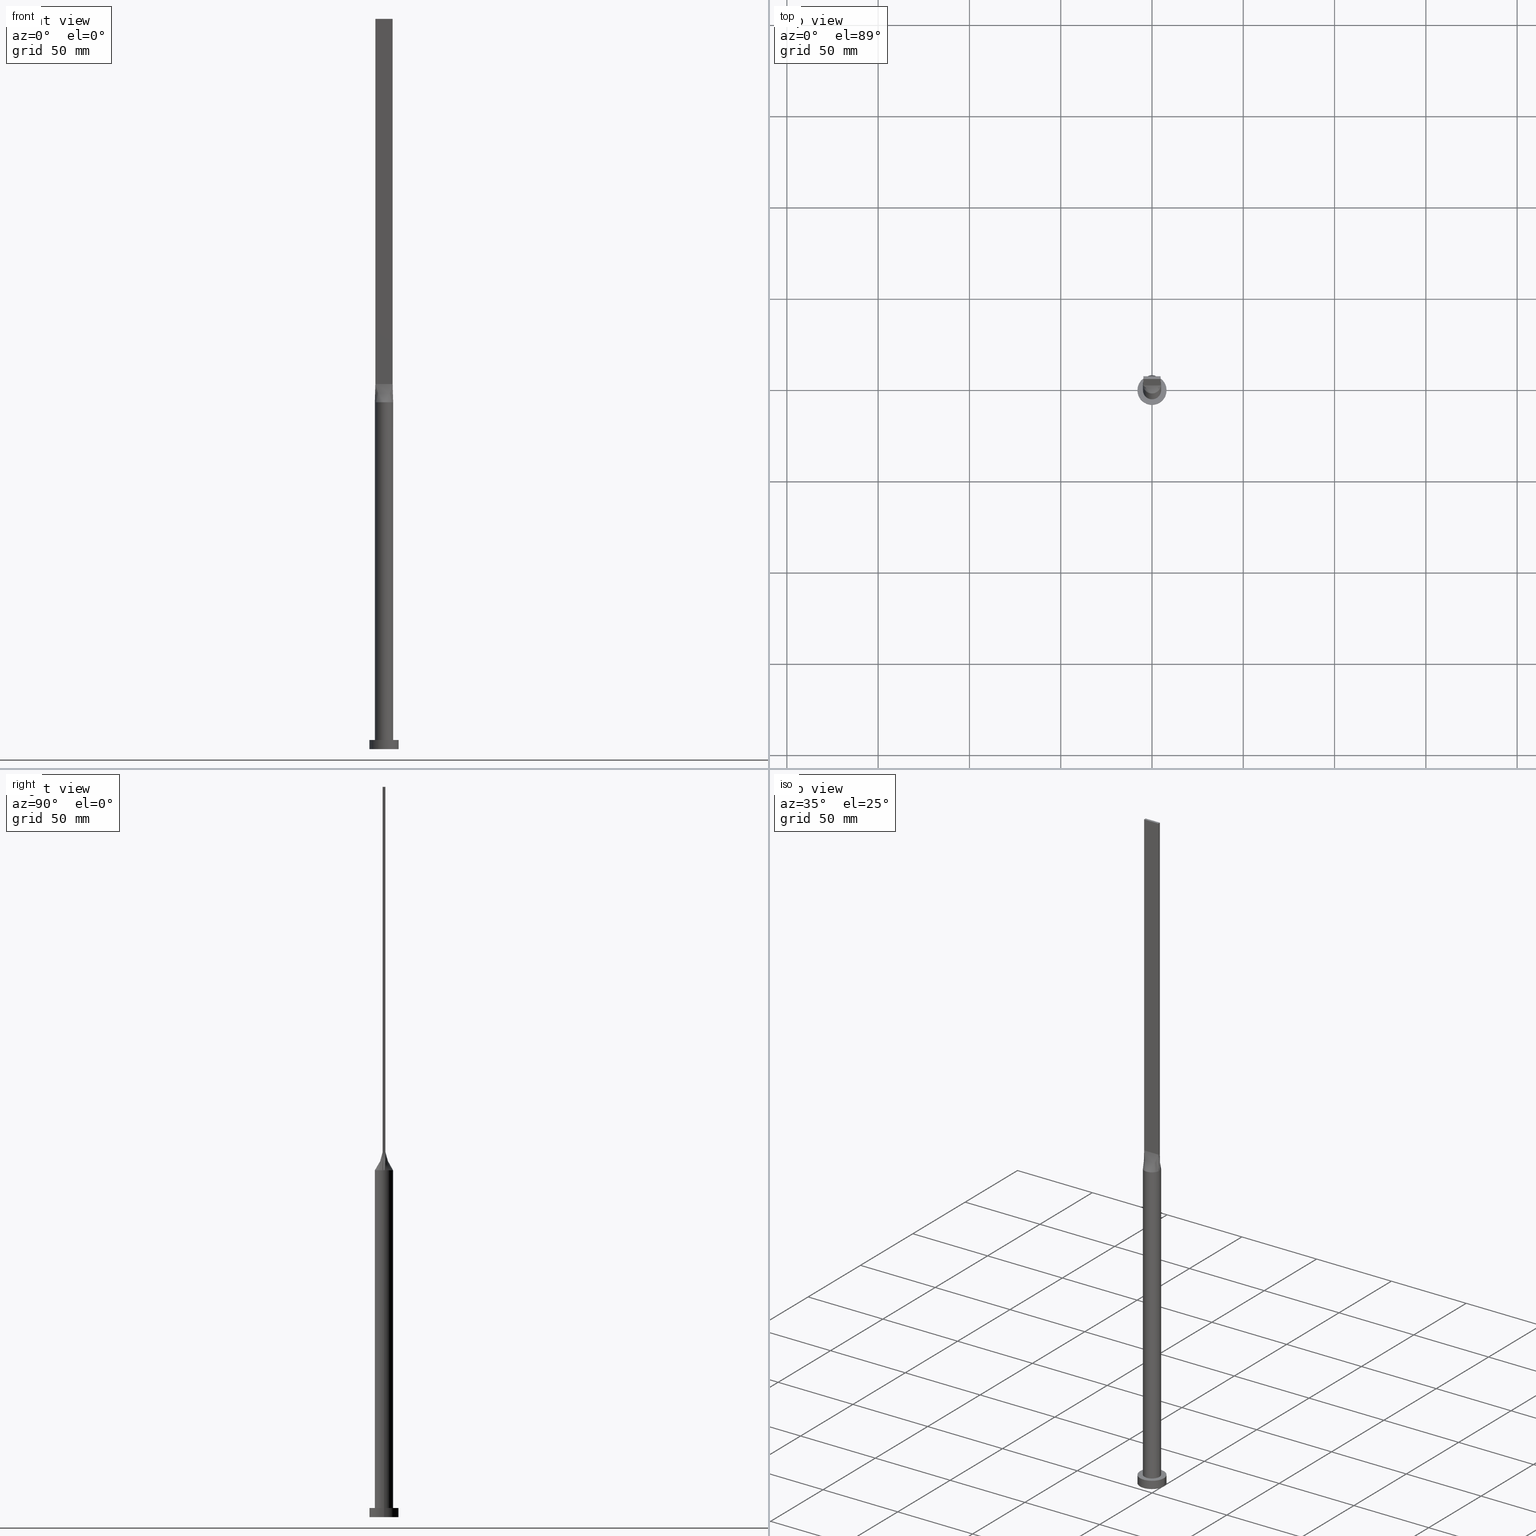
[diagram: canonical four-view strip — front | top / right | iso, engineering-drawing reading convention]
A machine part, canonical four-view strip (front | top / right | iso — engineering-drawing reading convention). The complete STEP part file that produces these views, byte-faithful:
ISO-10303-21;
HEADER;
FILE_DESCRIPTION (( 'STEP AP203' ),
    '1' );
FILE_NAME ('fd3a.STEP',
    '2023-02-13T09:51:57',
    ( '' ),
    ( '' ),
    'SwSTEP 2.0',
    'SolidWorks 2019',
    '' );
FILE_SCHEMA (( 'CONFIG_CONTROL_DESIGN' ));
ENDSEC;

DATA;
#1 = VERTEX_POINT ( 'NONE', #230 ) ;
#2 = CARTESIAN_POINT ( 'NONE',  ( 4.750000000000000000, -0.2499999999999990286, 200.0000000000000000 ) ) ;
#3 = CARTESIAN_POINT ( 'NONE',  ( 2.643217737595826566, 4.256483892511437439, 189.9999999999999432 ) ) ;
#4 = DIRECTION ( 'NONE',  ( 6.847592668329501559E-17, 1.000000000000000000, -0.000000000000000000 ) ) ;
#5 = CARTESIAN_POINT ( 'NONE',  ( -4.999625637456156291, -0.2615280553041481326, 190.0000000000000000 ) ) ;
#6 = EDGE_LOOP ( 'NONE', ( #567, #279, #445, #197 ) ) ;
#7 = CARTESIAN_POINT ( 'NONE',  ( -2.643217737595827455, 4.256483892511438327, 189.9999999999999716 ) ) ;
#8 = AXIS2_PLACEMENT_3D ( 'NONE', #466, #27, #219 ) ;
#9 = LINE ( 'NONE', #55, #461 ) ;
#10 = DIRECTION ( 'NONE',  ( 0.000000000000000000, 1.000000000000000000, 0.000000000000000000 ) ) ;
#11 = ORIENTED_EDGE ( 'NONE', *, *, #462, .F. ) ;
#12 = CARTESIAN_POINT ( 'NONE',  ( 4.750000000000000000, 0.7500000000000002220, 400.0000000000000000 ) ) ;
#13 = FACE_OUTER_BOUND ( 'NONE', #325, .T. ) ;
#14 = CARTESIAN_POINT ( 'NONE',  ( 2.770833333333326376, 0.7500000000000002220, 200.0000000000000000 ) ) ;
#15 = CARTESIAN_POINT ( 'NONE',  ( -4.750000000000000000, 0.7500000000000002220, 400.0000000000000000 ) ) ;
#16 = FACE_OUTER_BOUND ( 'NONE', #387, .T. ) ;
#17 = CARTESIAN_POINT ( 'NONE',  ( 0.7916666666666568597, 0.7500000000000002220, 200.0000000000000000 ) ) ;
#18 = CARTESIAN_POINT ( 'NONE',  ( -1.732223102076450250, -4.702695359254402518, 190.0000000000000284 ) ) ;
#19 = DIRECTION ( 'NONE',  ( 1.000000000000000000, 0.000000000000000000, 0.000000000000000000 ) ) ;
#20 = CALENDAR_DATE ( 2023, 13, 2 ) ;
#21 = CARTESIAN_POINT ( 'NONE',  ( -3.404830936252120299, 3.673931880027067720, 190.0000000000000853 ) ) ;
#22 = CARTESIAN_POINT ( 'NONE',  ( 4.938814826645345768, -0.7798128673650571718, 190.0000000000000000 ) ) ;
#23 = CARTESIAN_POINT ( 'NONE',  ( -3.958333333333336146, 0.7500000000000002220, 200.0000000000000000 ) ) ;
#24 = CARTESIAN_POINT ( 'NONE',  ( -0.7119876437238014111, -4.961551549233179870, 189.9999999999999432 ) ) ;
#25 = CARTESIAN_POINT ( 'NONE',  ( -4.750000000000000000, 0.7500000000000002220, 200.0000000000000000 ) ) ;
#26 = APPROVAL ( #144, 'NEUR�EN�' ) ;
#27 = DIRECTION ( 'NONE',  ( 0.000000000000000000, 0.000000000000000000, 1.000000000000000000 ) ) ;
#28 = CARTESIAN_POINT ( 'NONE',  ( 4.874625637456157179, 1.186344398896585606, 190.0000000000000853 ) ) ;
#29 = ORIENTED_EDGE ( 'NONE', *, *, #454, .F. ) ;
#30 = ORIENTED_EDGE ( 'NONE', *, *, #269, .T. ) ;
#31 = EDGE_CURVE ( 'NONE', #341, #492, #236, .T. ) ;
#32 = CARTESIAN_POINT ( 'NONE',  ( 4.750000000000000000, -0.7499999999999997780, 200.0000000000000000 ) ) ;
#33 = DATE_AND_TIME ( #329, #120 ) ;
#34 = MANIFOLD_SOLID_BREP ( 'P�idat vysunut�m5', #503 ) ;
#35 = VERTEX_POINT ( 'NONE', #189 ) ;
#36 = EDGE_LOOP ( 'NONE', ( #47, #233 ) ) ;
#37 = AXIS2_PLACEMENT_3D ( 'NONE', #455, #406, #254 ) ;
#38 = CARTESIAN_POINT ( 'NONE',  ( 8.000000000000000000, 9.797174393178825657E-16, 0.000000000000000000 ) ) ;
#39 = ADVANCED_FACE ( 'NONE', ( #517 ), #608, .F. ) ;
#40 = VERTEX_POINT ( 'NONE', #429 ) ;
#41 = EDGE_LOOP ( 'NONE', ( #181, #474, #184, #77 ) ) ;
#42 = DIRECTION ( 'NONE',  ( 0.000000000000000000, 0.000000000000000000, 1.000000000000000000 ) ) ;
#43 = SECURITY_CLASSIFICATION ( '', '', #114 ) ;
#44 = CARTESIAN_POINT ( 'NONE',  ( -4.999812818728077701, -1.193032336741890821E-15, 190.0000000000000000 ) ) ;
#45 = APPROVAL ( #267, 'NEUR�EN�' ) ;
#46 = B_SPLINE_SURFACE_WITH_KNOTS ( 'NONE', 3, 1, ( 
 ( #203, #544 ),
 ( #199, #498 ),
 ( #296, #489 ),
 ( #540, #248 ),
 ( #354, #91 ),
 ( #373, #221 ),
 ( #111, #59 ),
 ( #107, #62 ),
 ( #260, #256 ),
 ( #18, #457 ),
 ( #366, #67 ),
 ( #24, #317 ),
 ( #460, #171 ),
 ( #207, #509 ),
 ( #368, #263 ),
 ( #268, #553 ),
 ( #215, #309 ),
 ( #410, #157 ),
 ( #594, #562 ),
 ( #600, #211 ),
 ( #105, #598 ),
 ( #162, #314 ),
 ( #364, #505 ),
 ( #555, #506 ),
 ( #464, #548 ),
 ( #22, #265 ) ),
 .UNSPECIFIED., .F., .F., .F.,
 ( 4, 2, 2, 2, 2, 2, 2, 2, 2, 2, 2, 2, 4 ),
 ( 2, 2 ),
 ( 0.000000000000000000, 0.1250000000000000278, 0.2500000000000001110, 0.3125000000000001665, 0.3750000000000002220, 0.4375000000000002220, 0.5000000000000002220, 0.5625000000000002220, 0.6250000000000002220, 0.6875000000000002220, 0.7500000000000003331, 0.8750000000000002220, 1.000000000000000000 ),
 ( 0.000000000000000000, 1.000000000000000000 ),
 .UNSPECIFIED. ) ;
#47 = ORIENTED_EDGE ( 'NONE', *, *, #227, .F. ) ;
#48 = DIRECTION ( 'NONE',  ( -0.000000000000000000, -0.000000000000000000, -1.000000000000000000 ) ) ;
#49 = CYLINDRICAL_SURFACE ( 'NONE', #82, 8.000000000000000000 ) ;
#50 = DIRECTION ( 'NONE',  ( 0.000000000000000000, 0.000000000000000000, 1.000000000000000000 ) ) ;
#51 = EDGE_LOOP ( 'NONE', ( #390, #483, #29, #561, #427, #273 ) ) ;
#52 = CARTESIAN_POINT ( 'NONE',  ( -1.400150253878312823, 4.812847332616943419, 189.9999999999999716 ) ) ;
#53 = DIRECTION ( 'NONE',  ( -1.000000000000000000, 0.000000000000000000, 0.000000000000000000 ) ) ;
#54 = MECHANICAL_CONTEXT ( 'NONE', #129, 'mechanical' ) ;
#55 = CARTESIAN_POINT ( 'NONE',  ( 4.844407413322673328, 0.7649064336825270871, 195.0000000000000000 ) ) ;
#56 = CARTESIAN_POINT ( 'NONE',  ( -1.583333333333340587, 0.7500000000000002220, 200.0000000000000000 ) ) ;
#57 = CARTESIAN_POINT ( 'NONE',  ( 4.332026455536839293, 2.547220758687718689, 190.0000000000001137 ) ) ;
#58 = CARTESIAN_POINT ( 'NONE',  ( -4.354166666666667851, 0.7500000000000002220, 200.0000000000000000 ) ) ;
#59 = CARTESIAN_POINT ( 'NONE',  ( -1.979166666666660745, -0.7499999999999995559, 200.0000000000000568 ) ) ;
#60 = CARTESIAN_POINT ( 'NONE',  ( 4.750000000000000000, -0.7499999999999997780, 400.0000000000000000 ) ) ;
#61 = CARTESIAN_POINT ( 'NONE',  ( -1.385416666666674068, 0.7500000000000002220, 200.0000000000000000 ) ) ;
#62 = CARTESIAN_POINT ( 'NONE',  ( -1.583333333333326376, -0.7499999999999995559, 200.0000000000000568 ) ) ;
#63 = CIRCLE ( 'NONE', #377, 5.000000000000000000 ) ;
#64 = DATE_TIME_ROLE ( 'creation_date' ) ;
#65 = ADVANCED_FACE ( 'NONE', ( #88 ), #307, .T. ) ;
#66 = B_SPLINE_CURVE_WITH_KNOTS ( 'NONE', 3,
 ( #597, #28, #604, #57, #176, #335, #611, #3, #353, #244, #196, #526, #130, #535, #619, #52, #404, #83, #7, #493, #246, #198, #147, #392, #388, #484 ),
 .UNSPECIFIED., .F., .F.,
 ( 4, 2, 2, 2, 2, 2, 2, 2, 2, 2, 2, 2, 4 ),
 ( 0.000000000000000000, 0.1250000000000001388, 0.2500000000000002220, 0.3125000000000002776, 0.3750000000000002776, 0.4375000000000002776, 0.5000000000000002220, 0.5625000000000002220, 0.6250000000000001110, 0.6875000000000001110, 0.7500000000000001110, 0.8750000000000001110, 1.000000000000000000 ),
 .UNSPECIFIED. ) ;
#67 = CARTESIAN_POINT ( 'NONE',  ( -0.7916666666666584140, -0.7499999999999995559, 200.0000000000000000 ) ) ;
#68 = PERSON_AND_ORGANIZATION ( #481, #222 ) ;
#69 = AXIS2_PLACEMENT_3D ( 'NONE', #72, #334, #422 ) ;
#70 = AXIS2_PLACEMENT_3D ( 'NONE', #453, #4, #394 ) ;
#71 = EDGE_LOOP ( 'NONE', ( #478, #73, #331, #183 ) ) ;
#72 = CARTESIAN_POINT ( 'NONE',  ( 0.000000000000000000, 0.000000000000000000, 190.0000000000000000 ) ) ;
#73 = ORIENTED_EDGE ( 'NONE', *, *, #116, .T. ) ;
#74 = CARTESIAN_POINT ( 'NONE',  ( 4.750000000000000000, 0.7500000000000002220, 400.0000000000000000 ) ) ;
#75 = CIRCLE ( 'NONE', #177, 5.000000000000000000 ) ;
#76 = EDGE_CURVE ( 'NONE', #146, #179, #193, .T. ) ;
#77 = ORIENTED_EDGE ( 'NONE', *, *, #539, .T. ) ;
#78 = DESIGN_CONTEXT ( 'detailed design', #409, 'design' ) ;
#79 = CARTESIAN_POINT ( 'NONE',  ( -4.750000000000000000, -0.7499999999999991118, 400.0000000000000000 ) ) ;
#80 = APPROVAL ( #602, 'NEUR�EN�' ) ;
#81 = CARTESIAN_POINT ( 'NONE',  ( 4.938814826645345768, 0.7798128673650538412, 190.0000000000000000 ) ) ;
#82 = AXIS2_PLACEMENT_3D ( 'NONE', #591, #87, #53 ) ;
#83 = CARTESIAN_POINT ( 'NONE',  ( -2.353781608410062010, 4.424438117685770777, 189.9999999999999716 ) ) ;
#84 = CARTESIAN_POINT ( 'NONE',  ( 0.000000000000000000, 0.000000000000000000, 5.000000000000000000 ) ) ;
#85 = EDGE_LOOP ( 'NONE', ( #140, #186, #346, #330, #374 ) ) ;
#86 = CARTESIAN_POINT ( 'NONE',  ( -8.000000000000000000, 0.000000000000000000, 0.000000000000000000 ) ) ;
#87 = DIRECTION ( 'NONE',  ( -0.000000000000000000, -0.000000000000000000, -1.000000000000000000 ) ) ;
#88 = FACE_OUTER_BOUND ( 'NONE', #85, .T. ) ;
#89 = CARTESIAN_POINT ( 'NONE',  ( 4.750000000000000000, 0.2500000000000009992, 200.0000000000000000 ) ) ;
#90 = CARTESIAN_POINT ( 'NONE',  ( 4.750000000000000000, 0.7500000000000002220, 400.0000000000000000 ) ) ;
#91 = CARTESIAN_POINT ( 'NONE',  ( -2.770833333333329040, -0.7499999999999994449, 200.0000000000000568 ) ) ;
#92 =( NAMED_UNIT ( * ) SI_UNIT ( $, .STERADIAN. ) SOLID_ANGLE_UNIT ( ) );
#93 = CARTESIAN_POINT ( 'NONE',  ( -0.7916666666666754004, 0.7500000000000002220, 200.0000000000000000 ) ) ;
#94 = EDGE_CURVE ( 'NONE', #1, #225, #313, .T. ) ;
#95 = CARTESIAN_POINT ( 'NONE',  ( -4.844407413322673328, -0.7649064336825261989, 195.0000000000000000 ) ) ;
#96 = APPROVAL_PERSON_ORGANIZATION ( #508, #45, #467 ) ;
#97 = DIRECTION ( 'NONE',  ( 0.000000000000000000, 0.000000000000000000, 1.000000000000000000 ) ) ;
#98 = COORDINATED_UNIVERSAL_TIME_OFFSET ( 1, 0, .AHEAD. ) ;
#99 = CARTESIAN_POINT ( 'NONE',  ( 0.3560391241594590972, 5.000000000000001776, 190.0000000000000284 ) ) ;
#100 = PRODUCT ( 'fd3a', 'fd3a', '', ( #54 ) ) ;
#101 = CARTESIAN_POINT ( 'NONE',  ( 4.999812818728077701, 1.241126956226958231E-15, 190.0000000000000000 ) ) ;
#102 = DIRECTION ( 'NONE',  ( -1.000000000000000000, 0.000000000000000000, 0.000000000000000000 ) ) ;
#103 = APPROVAL_ROLE ( '' ) ;
#104 = CARTESIAN_POINT ( 'NONE',  ( -1.400150253878312823, 4.812847332616943419, 189.9999999999999716 ) ) ;
#105 = CARTESIAN_POINT ( 'NONE',  ( 3.404830936252118967, -3.673931880027069496, 190.0000000000001421 ) ) ;
#106 = ADVANCED_FACE ( 'NONE', ( #550 ), #164, .F. ) ;
#107 = CARTESIAN_POINT ( 'NONE',  ( -2.643217737595827010, -4.256483892511436551, 189.9999999999999147 ) ) ;
#108 = LINE ( 'NONE', #318, #554 ) ;
#109 = AXIS2_PLACEMENT_3D ( 'NONE', #238, #586, #249 ) ;
#110 = CALENDAR_DATE ( 2023, 13, 2 ) ;
#111 = CARTESIAN_POINT ( 'NONE',  ( -3.168723755431094524, -3.881165404529569152, 189.9999999999999432 ) ) ;
#112 = ORIENTED_EDGE ( 'NONE', *, *, #310, .F. ) ;
#113 = CARTESIAN_POINT ( 'NONE',  ( 0.000000000000000000, 0.000000000000000000, 190.0000000000000000 ) ) ;
#114 = SECURITY_CLASSIFICATION_LEVEL ( 'unclassified' ) ;
#115 = VERTEX_POINT ( 'NONE', #599 ) ;
#116 = EDGE_CURVE ( 'NONE', #119, #179, #167, .T. ) ;
#117 = LINE ( 'NONE', #516, #165 ) ;
#118 = COORDINATED_UNIVERSAL_TIME_OFFSET ( 1, 0, .AHEAD. ) ;
#119 = VERTEX_POINT ( 'NONE', #161 ) ;
#120 = LOCAL_TIME ( 10, 51, 57.00000000000000000, #118 ) ;
#121 = CYLINDRICAL_SURFACE ( 'NONE', #69, 5.000000000000000000 ) ;
#122 = CARTESIAN_POINT ( 'NONE',  ( -4.844407413322673328, 0.7649064336825274202, 195.0000000000000000 ) ) ;
#123 = DIRECTION ( 'NONE',  ( 0.000000000000000000, 0.000000000000000000, 1.000000000000000000 ) ) ;
#124 = ORIENTED_EDGE ( 'NONE', *, *, #223, .T. ) ;
#125 = EDGE_CURVE ( 'NONE', #284, #40, #216, .T. ) ;
#126 = LINE ( 'NONE', #336, #220 ) ;
#127 = ORIENTED_EDGE ( 'NONE', *, *, #440, .T. ) ;
#128 = VECTOR ( 'NONE', #132, 1000.000000000000000 ) ;
#129 = APPLICATION_CONTEXT ( 'configuration controlled 3d designs of mechanical parts and assemblies' ) ;
#130 = CARTESIAN_POINT ( 'NONE',  ( 0.3560391241594590972, 5.000000000000001776, 190.0000000000000284 ) ) ;
#131 = CC_DESIGN_PERSON_AND_ORGANIZATION_ASSIGNMENT ( #323, #511, ( #386 ) ) ;
#132 = DIRECTION ( 'NONE',  ( -0.000000000000000000, -0.000000000000000000, -1.000000000000000000 ) ) ;
#133 = DATE_AND_TIME ( #297, #338 ) ;
#134 = CARTESIAN_POINT ( 'NONE',  ( -4.938814826645345768, 0.7798128673650545073, 190.0000000000000000 ) ) ;
#135 = LINE ( 'NONE', #138, #418 ) ;
#136 = ORIENTED_EDGE ( 'NONE', *, *, #393, .T. ) ;
#137 = CARTESIAN_POINT ( 'NONE',  ( 0.000000000000000000, 0.000000000000000000, 0.000000000000000000 ) ) ;
#138 = CARTESIAN_POINT ( 'NONE',  ( -4.750000000000000000, -0.7499999999999991118, 200.0000000000000000 ) ) ;
#139 = CIRCLE ( 'NONE', #270, 8.000000000000000000 ) ;
#140 = ORIENTED_EDGE ( 'NONE', *, *, #327, .T. ) ;
#141 = CARTESIAN_POINT ( 'NONE',  ( -4.750000000000000000, 0.7500000000000002220, 200.0000000000000000 ) ) ;
#142 = APPROVAL_PERSON_ORGANIZATION ( #437, #26, #185 ) ;
#143 = DIRECTION ( 'NONE',  ( 1.000000000000000000, 0.000000000000000000, 0.000000000000000000 ) ) ;
#144 = APPROVAL_STATUS ( 'not_yet_approved' ) ;
#145 = CARTESIAN_POINT ( 'NONE',  ( -4.938814826645345768, -0.7798128673650532861, 190.0000000000000000 ) ) ;
#146 = VERTEX_POINT ( 'NONE', #60 ) ;
#147 = CARTESIAN_POINT ( 'NONE',  ( -4.332026455536841070, 2.547220758687717801, 190.0000000000000568 ) ) ;
#148 = FACE_OUTER_BOUND ( 'NONE', #376, .T. ) ;
#149 = CARTESIAN_POINT ( 'NONE',  ( -4.979355367185886116, 0.5230561106082979306, 190.0000000000000000 ) ) ;
#150 = CARTESIAN_POINT ( 'NONE',  ( 4.979355367185886116, 0.5230561106082972644, 190.0000000000000000 ) ) ;
#151 = EDGE_CURVE ( 'NONE', #284, #492, #108, .T. ) ;
#152 = CARTESIAN_POINT ( 'NONE',  ( 0.7119876437238013001, 4.961551549233180758, 190.0000000000000284 ) ) ;
#153 = AXIS2_PLACEMENT_3D ( 'NONE', #174, #332, #518 ) ;
#154 = DIRECTION ( 'NONE',  ( -0.01887803397728730556, -0.002980742206940059473, -0.9998173508241633423 ) ) ;
#155 = LINE ( 'NONE', #451, #399 ) ;
#156 = CARTESIAN_POINT ( 'NONE',  ( 1.400150253878312823, 4.812847332616943419, 190.0000000000000284 ) ) ;
#157 = CARTESIAN_POINT ( 'NONE',  ( 1.385416666666674956, -0.7499999999999997780, 200.0000000000000000 ) ) ;
#158 = CARTESIAN_POINT ( 'NONE',  ( -3.168723755431092748, 3.881165404529570484, 189.9999999999999147 ) ) ;
#159 = DIRECTION ( 'NONE',  ( -0.000000000000000000, -0.000000000000000000, -1.000000000000000000 ) ) ;
#160 = PRODUCT_DEFINITION ( 'NEZN�M�', '', #386, #78 ) ;
#161 = CARTESIAN_POINT ( 'NONE',  ( 4.938833698301754893, -0.7798158709413661738, 190.0000000000000000 ) ) ;
#162 = CARTESIAN_POINT ( 'NONE',  ( 4.029217956433124748, -3.021257902548483365, 190.0000000000001990 ) ) ;
#163 = VECTOR ( 'NONE', #369, 1000.000000000000000 ) ;
#164 = PLANE ( 'NONE',  #473 ) ;
#165 = VECTOR ( 'NONE', #382, 1000.000000000000000 ) ;
#166 = CARTESIAN_POINT ( 'NONE',  ( 8.000000000000000000, 9.797174393178825657E-16, 5.000000000000000000 ) ) ;
#167 = LINE ( 'NONE', #501, #194 ) ;
#168 = CIRCLE ( 'NONE', #289, 5.000000000000000000 ) ;
#169 = PERSON_AND_ORGANIZATION_ROLE ( 'creator' ) ;
#170 = ORIENTED_EDGE ( 'NONE', *, *, #440, .F. ) ;
#171 = CARTESIAN_POINT ( 'NONE',  ( -0.1979166666666593299, -0.7499999999999994449, 200.0000000000000000 ) ) ;
#172 = ADVANCED_FACE ( 'NONE', ( #266 ), #558, .T. ) ;
#173 = ORIENTED_EDGE ( 'NONE', *, *, #494, .F. ) ;
#174 = CARTESIAN_POINT ( 'NONE',  ( 0.000000000000000000, 0.000000000000000000, 5.000000000000000000 ) ) ;
#175 = VERTEX_POINT ( 'NONE', #321 ) ;
#176 = CARTESIAN_POINT ( 'NONE',  ( 4.029217956433126524, 3.021257902548482477, 190.0000000000001137 ) ) ;
#177 = AXIS2_PLACEMENT_3D ( 'NONE', #302, #252, #584 ) ;
#178 = CARTESIAN_POINT ( 'NONE',  ( -4.750000000000000000, 0.7500000000000002220, 400.0000000000000000 ) ) ;
#179 = VERTEX_POINT ( 'NONE', #32 ) ;
#180 = ADVANCED_FACE ( 'NONE', ( #182 ), #121, .T. ) ;
#181 = ORIENTED_EDGE ( 'NONE', *, *, #384, .T. ) ;
#182 = FACE_OUTER_BOUND ( 'NONE', #51, .T. ) ;
#183 = ORIENTED_EDGE ( 'NONE', *, *, #319, .T. ) ;
#184 = ORIENTED_EDGE ( 'NONE', *, *, #237, .T. ) ;
#185 = APPROVAL_ROLE ( '' ) ;
#186 = ORIENTED_EDGE ( 'NONE', *, *, #560, .T. ) ;
#187 = VECTOR ( 'NONE', #345, 1000.000000000000000 ) ;
#188 = FACE_OUTER_BOUND ( 'NONE', #6, .T. ) ;
#189 = CARTESIAN_POINT ( 'NONE',  ( -4.750000000000000000, -0.7499999999999991118, 200.0000000000000000 ) ) ;
#190 = PRODUCT_RELATED_PRODUCT_CATEGORY ( 'detail', '', ( #100 ) ) ;
#191 = ORIENTED_EDGE ( 'NONE', *, *, #247, .T. ) ;
#192 = DIRECTION ( 'NONE',  ( 0.000000000000000000, 0.000000000000000000, 1.000000000000000000 ) ) ;
#193 = LINE ( 'NONE', #541, #425 ) ;
#194 = VECTOR ( 'NONE', #510, 1000.000000000000114 ) ;
#195 = ORIENTED_EDGE ( 'NONE', *, *, #76, .T. ) ;
#196 = CARTESIAN_POINT ( 'NONE',  ( 1.400150253878312823, 4.812847332616943419, 190.0000000000000284 ) ) ;
#197 = ORIENTED_EDGE ( 'NONE', *, *, #293, .T. ) ;
#198 = CARTESIAN_POINT ( 'NONE',  ( -4.029217956433124748, 3.021257902548482033, 190.0000000000000853 ) ) ;
#199 = CARTESIAN_POINT ( 'NONE',  ( -4.874625637456154514, -1.186344398896584718, 190.0000000000000284 ) ) ;
#200 = EDGE_CURVE ( 'NONE', #614, #492, #426, .T. ) ;
#201 = DIRECTION ( 'NONE',  ( 1.000000000000000000, -6.847592668329501559E-17, 0.000000000000000000 ) ) ;
#202 = CARTESIAN_POINT ( 'NONE',  ( 4.332026455536839293, 2.547220758687718689, 190.0000000000001137 ) ) ;
#203 = CARTESIAN_POINT ( 'NONE',  ( -4.938814826645345768, -0.7798128673650532861, 190.0000000000000000 ) ) ;
#204 = CARTESIAN_POINT ( 'NONE',  ( -4.979355367185885228, -0.5230561106082968204, 190.0000000000000000 ) ) ;
#205 = CYLINDRICAL_SURFACE ( 'NONE', #109, 8.000000000000000000 ) ;
#206 = CARTESIAN_POINT ( 'NONE',  ( -2.643217737595827455, 4.256483892511438327, 189.9999999999999716 ) ) ;
#207 = CARTESIAN_POINT ( 'NONE',  ( 0.3560391241594588196, -5.000000000000000888, 190.0000000000000000 ) ) ;
#208 = B_SPLINE_SURFACE_WITH_KNOTS ( 'NONE', 3, 1, ( 
 ( #288, #592 ),
 ( #486, #400 ),
 ( #589, #2 ),
 ( #530, #89 ),
 ( #150, #360 ),
 ( #81, #533 ) ),
 .UNSPECIFIED., .F., .F., .F.,
 ( 4, 2, 4 ),
 ( 2, 2 ),
 ( 0.000000000000000000, 0.5000000000000000000, 1.000000000000000000 ),
 ( 0.000000000000000000, 1.000000000000000000 ),
 .UNSPECIFIED. ) ;
#209 = ADVANCED_FACE ( 'NONE', ( #326, #606 ), #277, .T. ) ;
#210 = CARTESIAN_POINT ( 'NONE',  ( -1.732223102076449806, 4.702695359254402518, 190.0000000000000000 ) ) ;
#211 = CARTESIAN_POINT ( 'NONE',  ( 1.979166666666674734, -0.7499999999999997780, 200.0000000000000000 ) ) ;
#212 = VECTOR ( 'NONE', #448, 1000.000000000000000 ) ;
#213 = PERSON_AND_ORGANIZATION_ROLE ( 'design_owner' ) ;
#214 = CARTESIAN_POINT ( 'NONE',  ( -0.9895833333333416970, 0.7500000000000002220, 200.0000000000000000 ) ) ;
#215 = CARTESIAN_POINT ( 'NONE',  ( 1.732223102076449583, -4.702695359254404295, 190.0000000000000284 ) ) ;
#216 = LINE ( 'NONE', #371, #163 ) ;
#217 = APPLICATION_PROTOCOL_DEFINITION ( 'international standard', 'config_control_design', 1994, #409 ) ;
#218 = LINE ( 'NONE', #166, #229 ) ;
#219 = DIRECTION ( 'NONE',  ( 1.000000000000000000, 0.000000000000000000, -0.000000000000000000 ) ) ;
#220 = VECTOR ( 'NONE', #531, 1000.000000000000000 ) ;
#221 = CARTESIAN_POINT ( 'NONE',  ( -2.177083333333327708, -0.7499999999999995559, 200.0000000000000568 ) ) ;
#222 = ORGANIZATION ( 'NEUR�EN�', 'NEUR�EN�', '' ) ;
#223 = EDGE_CURVE ( 'NONE', #179, #614, #117, .T. ) ;
#224 = DATE_AND_TIME ( #261, #239 ) ;
#225 = VERTEX_POINT ( 'NONE', #274 ) ;
#226 = DIRECTION ( 'NONE',  ( 0.01887803397728730556, -0.002980742206940070315, 0.9998173508241633423 ) ) ;
#227 = EDGE_CURVE ( 'NONE', #115, #175, #520, .T. ) ;
#228 = ORIENTED_EDGE ( 'NONE', *, *, #393, .F. ) ;
#229 = VECTOR ( 'NONE', #159, 1000.000000000000000 ) ;
#230 = CARTESIAN_POINT ( 'NONE',  ( 8.000000000000000000, 9.797174393178825657E-16, 5.000000000000000000 ) ) ;
#231 = VERTEX_POINT ( 'NONE', #74 ) ;
#232 = VERTEX_POINT ( 'NONE', #38 ) ;
#233 = ORIENTED_EDGE ( 'NONE', *, *, #247, .F. ) ;
#234 = CARTESIAN_POINT ( 'NONE',  ( 4.938814826645345768, 0.7798128673650542853, 190.0000000000000000 ) ) ;
#235 = DIRECTION ( 'NONE',  ( 1.000000000000000000, 0.000000000000000000, -0.000000000000000000 ) ) ;
#236 = LINE ( 'NONE', #122, #569 ) ;
#237 = EDGE_CURVE ( 'NONE', #40, #146, #126, .T. ) ;
#238 = CARTESIAN_POINT ( 'NONE',  ( 0.000000000000000000, 0.000000000000000000, 5.000000000000000000 ) ) ;
#239 = LOCAL_TIME ( 10, 51, 57.00000000000000000, #98 ) ;
#240 = DIRECTION ( 'NONE',  ( 1.000000000000000000, 2.664535259100375697E-15, 0.000000000000000000 ) ) ;
#241 = CARTESIAN_POINT ( 'NONE',  ( -4.938821632323166178, -0.7798139456827060112, 190.0000000000000000 ) ) ;
#242 = CARTESIAN_POINT ( 'NONE',  ( -4.999625637456156291, 0.2615280553041492984, 190.0000000000000000 ) ) ;
#243 = ORIENTED_EDGE ( 'NONE', *, *, #269, .F. ) ;
#244 = CARTESIAN_POINT ( 'NONE',  ( 1.732223102076450250, 4.702695359254404295, 190.0000000000000000 ) ) ;
#245 = LINE ( 'NONE', #403, #212 ) ;
#246 = CARTESIAN_POINT ( 'NONE',  ( -3.404830936252120299, 3.673931880027067720, 190.0000000000000853 ) ) ;
#247 = EDGE_CURVE ( 'NONE', #175, #115, #512, .T. ) ;
#248 = CARTESIAN_POINT ( 'NONE',  ( -3.166666666666662966, -0.7499999999999993339, 200.0000000000000284 ) ) ;
#249 = DIRECTION ( 'NONE',  ( -1.000000000000000000, 0.000000000000000000, 0.000000000000000000 ) ) ;
#250 = CIRCLE ( 'NONE', #316, 5.000000000000000000 ) ;
#251 = LINE ( 'NONE', #579, #287 ) ;
#252 = DIRECTION ( 'NONE',  ( 0.000000000000000000, 0.000000000000000000, 1.000000000000000000 ) ) ;
#253 = DATE_TIME_ROLE ( 'classification_date' ) ;
#254 = DIRECTION ( 'NONE',  ( -1.000000000000000000, 0.000000000000000000, 0.000000000000000000 ) ) ;
#255 = CARTESIAN_POINT ( 'NONE',  ( -2.353781608410062010, 4.424438117685770777, 189.9999999999999716 ) ) ;
#256 = CARTESIAN_POINT ( 'NONE',  ( -1.385416666666659413, -0.7499999999999995559, 200.0000000000000568 ) ) ;
#257 = CARTESIAN_POINT ( 'NONE',  ( -4.750000000000000000, -0.2500000000000000000, 200.0000000000000000 ) ) ;
#258 = ADVANCED_FACE ( 'NONE', ( #148 ), #402, .F. ) ;
#259 = CARTESIAN_POINT ( 'NONE',  ( -0.3958333333333418635, 0.7500000000000002220, 200.0000000000000000 ) ) ;
#260 = CARTESIAN_POINT ( 'NONE',  ( -2.353781608410061121, -4.424438117685769889, 189.9999999999999716 ) ) ;
#261 = CALENDAR_DATE ( 2023, 13, 2 ) ;
#262 = CARTESIAN_POINT ( 'NONE',  ( -2.770833333333339255, 0.7500000000000002220, 200.0000000000000000 ) ) ;
#263 = CARTESIAN_POINT ( 'NONE',  ( 0.3958333333333413639, -0.7499999999999994449, 200.0000000000000000 ) ) ;
#264 = COORDINATED_UNIVERSAL_TIME_OFFSET ( 1, 0, .AHEAD. ) ;
#265 = CARTESIAN_POINT ( 'NONE',  ( 4.750000000000000000, -0.7499999999999997780, 200.0000000000000000 ) ) ;
#266 = FACE_OUTER_BOUND ( 'NONE', #41, .T. ) ;
#267 = APPROVAL_STATUS ( 'not_yet_approved' ) ;
#268 = CARTESIAN_POINT ( 'NONE',  ( 1.400150253878312157, -4.812847332616943419, 189.9999999999999432 ) ) ;
#269 = EDGE_CURVE ( 'NONE', #232, #522, #139, .T. ) ;
#270 = AXIS2_PLACEMENT_3D ( 'NONE', #575, #351, #482 ) ;
#271 = EDGE_LOOP ( 'NONE', ( #613, #582, #610, #434 ) ) ;
#272 = ADVANCED_FACE ( 'NONE', ( #485 ), #49, .T. ) ;
#273 = ORIENTED_EDGE ( 'NONE', *, *, #227, .T. ) ;
#274 = CARTESIAN_POINT ( 'NONE',  ( -8.000000000000000000, 0.000000000000000000, 5.000000000000000000 ) ) ;
#275 = ORIENTED_EDGE ( 'NONE', *, *, #601, .F. ) ;
#276 = VERTEX_POINT ( 'NONE', #44 ) ;
#277 = PLANE ( 'NONE',  #153 ) ;
#278 = VERTEX_POINT ( 'NONE', #241 ) ;
#279 = ORIENTED_EDGE ( 'NONE', *, *, #76, .F. ) ;
#280 = PLANE ( 'NONE',  #603 ) ;
#281 = CC_DESIGN_DATE_AND_TIME_ASSIGNMENT ( #33, #253, ( #43 ) ) ;
#282 = CARTESIAN_POINT ( 'NONE',  ( 0.000000000000000000, 0.000000000000000000, 190.0000000000000000 ) ) ;
#283 = B_SPLINE_SURFACE_WITH_KNOTS ( 'NONE', 3, 1, ( 
 ( #234, #301 ),
 ( #452, #397 ),
 ( #295, #347 ),
 ( #202, #343 ),
 ( #583, #14 ),
 ( #488, #587 ),
 ( #590, #527 ),
 ( #441, #547 ),
 ( #362, #552 ),
 ( #497, #358 ),
 ( #156, #17 ),
 ( #152, #412 ),
 ( #99, #543 ),
 ( #456, #504 ),
 ( #596, #259 ),
 ( #104, #93 ),
 ( #210, #214 ),
 ( #255, #61 ),
 ( #206, #56 ),
 ( #158, #365 ),
 ( #21, #408 ),
 ( #304, #262 ),
 ( #463, #593 ),
 ( #308, #23 ),
 ( #499, #58 ),
 ( #459, #312 ) ),
 .UNSPECIFIED., .F., .F., .F.,
 ( 4, 2, 2, 2, 2, 2, 2, 2, 2, 2, 2, 2, 4 ),
 ( 2, 2 ),
 ( 0.000000000000000000, 0.1250000000000001388, 0.2500000000000002220, 0.3125000000000002776, 0.3750000000000002776, 0.4375000000000002776, 0.5000000000000002220, 0.5625000000000002220, 0.6250000000000001110, 0.6875000000000001110, 0.7500000000000001110, 0.8750000000000001110, 1.000000000000000000 ),
 ( 0.000000000000000000, 1.000000000000000000 ),
 .UNSPECIFIED. ) ;
#284 = VERTEX_POINT ( 'NONE', #15 ) ;
#285 = DIRECTION ( 'NONE',  ( 0.000000000000000000, -0.000000000000000000, -1.000000000000000000 ) ) ;
#286 = DIRECTION ( 'NONE',  ( 0.000000000000000000, 0.000000000000000000, 1.000000000000000000 ) ) ;
#287 = VECTOR ( 'NONE', #48, 1000.000000000000000 ) ;
#288 = CARTESIAN_POINT ( 'NONE',  ( 4.938814826645345768, -0.7798128673650550624, 190.0000000000000000 ) ) ;
#289 = AXIS2_PLACEMENT_3D ( 'NONE', #113, #324, #500 ) ;
#290 = DIRECTION ( 'NONE',  ( 0.000000000000000000, -1.000000000000000000, 0.000000000000000000 ) ) ;
#291 = CARTESIAN_POINT ( 'NONE',  ( -4.750000000000000000, -0.4999999999999995559, 200.0000000000000000 ) ) ;
#292 = DIRECTION ( 'NONE',  ( 0.000000000000000000, 0.000000000000000000, 1.000000000000000000 ) ) ;
#293 = EDGE_CURVE ( 'NONE', #40, #35, #442, .T. ) ;
#294 = EDGE_LOOP ( 'NONE', ( #170, #11, #616, #136 ) ) ;
#295 = CARTESIAN_POINT ( 'NONE',  ( 4.753727492665065668, 1.629988260829201563, 190.0000000000000853 ) ) ;
#296 = CARTESIAN_POINT ( 'NONE',  ( -4.753727492665065668, -1.629988260829201119, 190.0000000000000853 ) ) ;
#297 = CALENDAR_DATE ( 2023, 13, 2 ) ;
#298 = CARTESIAN_POINT ( 'NONE',  ( 0.000000000000000000, 0.000000000000000000, 5.000000000000000000 ) ) ;
#299 = DIRECTION ( 'NONE',  ( -0.000000000000000000, -0.000000000000000000, -1.000000000000000000 ) ) ;
#300 = ORIENTED_EDGE ( 'NONE', *, *, #384, .F. ) ;
#301 = CARTESIAN_POINT ( 'NONE',  ( 4.750000000000000000, 0.7500000000000002220, 200.0000000000000000 ) ) ;
#302 = CARTESIAN_POINT ( 'NONE',  ( 0.000000000000000000, 0.000000000000000000, 190.0000000000000000 ) ) ;
#303 = LOCAL_TIME ( 10, 51, 57.00000000000000000, #311 ) ;
#304 = CARTESIAN_POINT ( 'NONE',  ( -4.029217956433124748, 3.021257902548482033, 190.0000000000000853 ) ) ;
#305 = DIRECTION ( 'NONE',  ( -1.000000000000000000, 0.000000000000000000, 0.000000000000000000 ) ) ;
#306 = PERSON_AND_ORGANIZATION ( #481, #222 ) ;
#307 = B_SPLINE_SURFACE_WITH_KNOTS ( 'NONE', 3, 1, ( 
 ( #134, #395 ),
 ( #149, #495 ),
 ( #242, #443 ),
 ( #5, #257 ),
 ( #204, #291 ),
 ( #145, #355 ) ),
 .UNSPECIFIED., .F., .F., .F.,
 ( 4, 2, 4 ),
 ( 2, 2 ),
 ( 0.000000000000000000, 0.5000000000000000000, 1.000000000000000000 ),
 ( 0.000000000000000000, 1.000000000000000000 ),
 .UNSPECIFIED. ) ;
#308 = CARTESIAN_POINT ( 'NONE',  ( -4.753727492665067444, 1.629988260829202007, 190.0000000000001137 ) ) ;
#309 = CARTESIAN_POINT ( 'NONE',  ( 0.9895833333333419191, -0.7499999999999996669, 200.0000000000000000 ) ) ;
#310 = EDGE_CURVE ( 'NONE', #396, #614, #9, .T. ) ;
#311 = COORDINATED_UNIVERSAL_TIME_OFFSET ( 1, 0, .AHEAD. ) ;
#312 = CARTESIAN_POINT ( 'NONE',  ( -4.750000000000000000, 0.7500000000000002220, 200.0000000000000000 ) ) ;
#313 = CIRCLE ( 'NONE', #357, 8.000000000000000000 ) ;
#314 = CARTESIAN_POINT ( 'NONE',  ( 2.770833333333341031, -0.7499999999999997780, 200.0000000000000000 ) ) ;
#315 = APPROVAL_DATE_TIME ( #224, #80 ) ;
#316 = AXIS2_PLACEMENT_3D ( 'NONE', #401, #42, #240 ) ;
#317 = CARTESIAN_POINT ( 'NONE',  ( -0.3958333333333254322, -0.7499999999999995559, 200.0000000000000000 ) ) ;
#318 = CARTESIAN_POINT ( 'NONE',  ( -4.750000000000000000, 0.7500000000000002220, 400.0000000000000000 ) ) ;
#319 = EDGE_CURVE ( 'NONE', #35, #278, #398, .T. ) ;
#320 = DIRECTION ( 'NONE',  ( 0.000000000000000000, 0.000000000000000000, 1.000000000000000000 ) ) ;
#321 = CARTESIAN_POINT ( 'NONE',  ( 5.000000000000000000, 6.123233995736766282E-16, 5.000000000000000000 ) ) ;
#322 = ADVANCED_BREP_SHAPE_REPRESENTATION ( 'fd3a', ( #34, #411 ), #515 ) ;
#323 = PERSON_AND_ORGANIZATION ( #481, #222 ) ;
#324 = DIRECTION ( 'NONE',  ( 0.000000000000000000, 0.000000000000000000, 1.000000000000000000 ) ) ;
#325 = EDGE_LOOP ( 'NONE', ( #472, #433, #381, #524, #391 ) ) ;
#326 = FACE_BOUND ( 'NONE', #36, .T. ) ;
#327 = EDGE_CURVE ( 'NONE', #341, #276, #75, .T. ) ;
#328 = CC_DESIGN_APPROVAL ( #45, ( #386 ) ) ;
#329 = CALENDAR_DATE ( 2023, 13, 2 ) ;
#330 = ORIENTED_EDGE ( 'NONE', *, *, #431, .F. ) ;
#331 = ORIENTED_EDGE ( 'NONE', *, *, #585, .F. ) ;
#332 = DIRECTION ( 'NONE',  ( 0.000000000000000000, 0.000000000000000000, 1.000000000000000000 ) ) ;
#333 = DIRECTION ( 'NONE',  ( -0.000000000000000000, 0.000000000000000000, -1.000000000000000000 ) ) ;
#334 = DIRECTION ( 'NONE',  ( -0.000000000000000000, -0.000000000000000000, -1.000000000000000000 ) ) ;
#335 = CARTESIAN_POINT ( 'NONE',  ( 3.404830936252119411, 3.673931880027066388, 190.0000000000000284 ) ) ;
#336 = CARTESIAN_POINT ( 'NONE',  ( -4.750000000000000000, -0.7499999999999991118, 400.0000000000000000 ) ) ;
#337 = CIRCLE ( 'NONE', #438, 5.000000000000000000 ) ;
#338 = LOCAL_TIME ( 10, 51, 57.00000000000000000, #385 ) ;
#339 = ADVANCED_FACE ( 'NONE', ( #188 ), #436, .F. ) ;
#340 = ORIENTED_EDGE ( 'NONE', *, *, #475, .T. ) ;
#341 = VERTEX_POINT ( 'NONE', #620 ) ;
#342 = ORIENTED_EDGE ( 'NONE', *, *, #462, .T. ) ;
#343 = CARTESIAN_POINT ( 'NONE',  ( 3.166666666666660745, 0.7500000000000002220, 200.0000000000000000 ) ) ;
#344 = UNCERTAINTY_MEASURE_WITH_UNIT (LENGTH_MEASURE( 1.000000000000000082E-05 ), #480, 'distance_accuracy_value', 'NONE');
#345 = DIRECTION ( 'NONE',  ( -0.000000000000000000, -0.000000000000000000, -1.000000000000000000 ) ) ;
#346 = ORIENTED_EDGE ( 'NONE', *, *, #319, .F. ) ;
#347 = CARTESIAN_POINT ( 'NONE',  ( 3.958333333333330373, 0.7500000000000002220, 200.0000000000000000 ) ) ;
#348 = DIRECTION ( 'NONE',  ( 0.000000000000000000, 0.000000000000000000, 1.000000000000000000 ) ) ;
#349 = CC_DESIGN_PERSON_AND_ORGANIZATION_ASSIGNMENT ( #68, #420, ( #386 ) ) ;
#350 = LINE ( 'NONE', #439, #476 ) ;
#351 = DIRECTION ( 'NONE',  ( 0.000000000000000000, 0.000000000000000000, 1.000000000000000000 ) ) ;
#352 = DIRECTION ( 'NONE',  ( 1.000000000000000000, 0.000000000000000000, 0.000000000000000000 ) ) ;
#353 = CARTESIAN_POINT ( 'NONE',  ( 2.353781608410062454, 4.424438117685770777, 190.0000000000000284 ) ) ;
#354 = CARTESIAN_POINT ( 'NONE',  ( -4.029217956433126524, -3.021257902548482033, 190.0000000000001137 ) ) ;
#355 = CARTESIAN_POINT ( 'NONE',  ( -4.750000000000000000, -0.7499999999999991118, 200.0000000000000000 ) ) ;
#356 = FACE_OUTER_BOUND ( 'NONE', #470, .T. ) ;
#357 = AXIS2_PLACEMENT_3D ( 'NONE', #298, #97, #19 ) ;
#358 = CARTESIAN_POINT ( 'NONE',  ( 0.9895833333333237114, 0.7500000000000002220, 200.0000000000000000 ) ) ;
#359 = LINE ( 'NONE', #12, #450 ) ;
#360 = CARTESIAN_POINT ( 'NONE',  ( 4.750000000000000000, 0.5000000000000006661, 200.0000000000000000 ) ) ;
#361 = AXIS2_PLACEMENT_3D ( 'NONE', #137, #348, #143 ) ;
#362 = CARTESIAN_POINT ( 'NONE',  ( 2.353781608410062454, 4.424438117685770777, 190.0000000000000284 ) ) ;
#363 = EDGE_CURVE ( 'NONE', #225, #522, #580, .T. ) ;
#364 = CARTESIAN_POINT ( 'NONE',  ( 4.332026455536841070, -2.547220758687719577, 190.0000000000001421 ) ) ;
#365 = CARTESIAN_POINT ( 'NONE',  ( -1.979166666666673402, 0.7500000000000002220, 200.0000000000000000 ) ) ;
#366 = CARTESIAN_POINT ( 'NONE',  ( -1.400150253878313711, -4.812847332616943419, 190.0000000000000853 ) ) ;
#367 = VECTOR ( 'NONE', #432, 1000.000000000000000 ) ;
#368 = CARTESIAN_POINT ( 'NONE',  ( 0.7119876437238003009, -4.961551549233181646, 190.0000000000000568 ) ) ;
#369 = DIRECTION ( 'NONE',  ( 0.000000000000000000, -1.000000000000000000, 0.000000000000000000 ) ) ;
#370 = CC_DESIGN_DATE_AND_TIME_ASSIGNMENT ( #458, #64, ( #160 ) ) ;
#371 = CARTESIAN_POINT ( 'NONE',  ( -4.750000000000000000, 0.7500000000000002220, 400.0000000000000000 ) ) ;
#372 = DATE_AND_TIME ( #20, #595 ) ;
#373 = CARTESIAN_POINT ( 'NONE',  ( -3.404830936252120299, -3.673931880027065056, 190.0000000000000284 ) ) ;
#374 = ORIENTED_EDGE ( 'NONE', *, *, #31, .F. ) ;
#375 = PERSON_AND_ORGANIZATION ( #481, #222 ) ;
#376 = EDGE_LOOP ( 'NONE', ( #228, #243 ) ) ;
#377 = AXIS2_PLACEMENT_3D ( 'NONE', #465, #414, #419 ) ;
#378 = CC_DESIGN_SECURITY_CLASSIFICATION ( #43, ( #386 ) ) ;
#379 = DIRECTION ( 'NONE',  ( 1.000000000000000000, 0.000000000000000000, -0.000000000000000000 ) ) ;
#380 = EDGE_LOOP ( 'NONE', ( #124, #173, #525, #195 ) ) ;
#381 = ORIENTED_EDGE ( 'NONE', *, *, #310, .T. ) ;
#382 = DIRECTION ( 'NONE',  ( -0.000000000000000000, 1.000000000000000000, -0.000000000000000000 ) ) ;
#383 = ORIENTED_EDGE ( 'NONE', *, *, #94, .F. ) ;
#384 = EDGE_CURVE ( 'NONE', #231, #284, #359, .T. ) ;
#385 = COORDINATED_UNIVERSAL_TIME_OFFSET ( 1, 0, .AHEAD. ) ;
#386 = PRODUCT_DEFINITION_FORMATION_WITH_SPECIFIED_SOURCE ( 'LIBOVOLN�', '', #100, .NOT_KNOWN. ) ;
#387 = EDGE_LOOP ( 'NONE', ( #383, #127, #30, #424 ) ) ;
#388 = CARTESIAN_POINT ( 'NONE',  ( -4.874625637456156291, 1.186344398896586716, 190.0000000000000000 ) ) ;
#389 = CARTESIAN_POINT ( 'NONE',  ( 0.000000000000000000, 0.000000000000000000, 0.000000000000000000 ) ) ;
#390 = ORIENTED_EDGE ( 'NONE', *, *, #566, .F. ) ;
#391 = ORIENTED_EDGE ( 'NONE', *, *, #116, .F. ) ;
#392 = CARTESIAN_POINT ( 'NONE',  ( -4.753727492665067444, 1.629988260829202007, 190.0000000000001137 ) ) ;
#393 = EDGE_CURVE ( 'NONE', #522, #232, #609, .T. ) ;
#394 = DIRECTION ( 'NONE',  ( -1.000000000000000000, 6.847592668329501559E-17, 0.000000000000000000 ) ) ;
#395 = CARTESIAN_POINT ( 'NONE',  ( -4.750000000000000000, 0.7500000000000002220, 200.0000000000000000 ) ) ;
#396 = VERTEX_POINT ( 'NONE', #536 ) ;
#397 = CARTESIAN_POINT ( 'NONE',  ( 4.354166666666665186, 0.7500000000000002220, 200.0000000000000000 ) ) ;
#398 = LINE ( 'NONE', #95, #532 ) ;
#399 = VECTOR ( 'NONE', #10, 1000.000000000000000 ) ;
#400 = CARTESIAN_POINT ( 'NONE',  ( 4.750000000000000000, -0.4999999999999992784, 200.0000000000000000 ) ) ;
#401 = CARTESIAN_POINT ( 'NONE',  ( 0.000000000000000000, 0.000000000000000000, 190.0000000000000000 ) ) ;
#402 = PLANE ( 'NONE',  #556 ) ;
#403 = CARTESIAN_POINT ( 'NONE',  ( 5.000000000000000000, 6.123233995736766282E-16, 190.0000000000000000 ) ) ;
#404 = CARTESIAN_POINT ( 'NONE',  ( -1.732223102076449806, 4.702695359254402518, 190.0000000000000000 ) ) ;
#405 = DIRECTION ( 'NONE',  ( -0.01887803397728730556, -0.002980742206940005263, 0.9998173508241633423 ) ) ;
#406 = DIRECTION ( 'NONE',  ( -0.000000000000000000, -0.000000000000000000, -1.000000000000000000 ) ) ;
#407 = CC_DESIGN_PERSON_AND_ORGANIZATION_ASSIGNMENT ( #375, #563, ( #43 ) ) ;
#408 = CARTESIAN_POINT ( 'NONE',  ( -2.177083333333339699, 0.7500000000000002220, 200.0000000000000000 ) ) ;
#409 = APPLICATION_CONTEXT ( 'configuration controlled 3d designs of mechanical parts and assemblies' ) ;
#410 = CARTESIAN_POINT ( 'NONE',  ( 2.353781608410061121, -4.424438117685769889, 190.0000000000000000 ) ) ;
#411 = AXIS2_PLACEMENT_3D ( 'NONE', #581, #50, #352 ) ;
#412 = CARTESIAN_POINT ( 'NONE',  ( 0.3958333333333243220, 0.7500000000000002220, 200.0000000000000000 ) ) ;
#413 = CARTESIAN_POINT ( 'NONE',  ( 0.000000000000000000, 0.000000000000000000, 5.000000000000000000 ) ) ;
#414 = DIRECTION ( 'NONE',  ( 0.000000000000000000, 0.000000000000000000, 1.000000000000000000 ) ) ;
#415 = ADVANCED_FACE ( 'NONE', ( #588 ), #46, .T. ) ;
#416 = DIRECTION ( 'NONE',  ( 0.000000000000000000, 0.000000000000000000, 1.000000000000000000 ) ) ;
#417 = LINE ( 'NONE', #25, #545 ) ;
#418 = VECTOR ( 'NONE', #201, 1000.000000000000000 ) ;
#419 = DIRECTION ( 'NONE',  ( 1.000000000000000000, 0.000000000000000000, 0.000000000000000000 ) ) ;
#420 = PERSON_AND_ORGANIZATION_ROLE ( 'design_supplier' ) ;
#421 = VERTEX_POINT ( 'NONE', #101 ) ;
#422 = DIRECTION ( 'NONE',  ( -1.000000000000000000, 0.000000000000000000, 0.000000000000000000 ) ) ;
#423 = EDGE_CURVE ( 'NONE', #421, #396, #63, .T. ) ;
#424 = ORIENTED_EDGE ( 'NONE', *, *, #363, .F. ) ;
#425 = VECTOR ( 'NONE', #537, 1000.000000000000000 ) ;
#426 = LINE ( 'NONE', #477, #367 ) ;
#427 = ORIENTED_EDGE ( 'NONE', *, *, #601, .T. ) ;
#428 = ORIENTED_EDGE ( 'NONE', *, *, #151, .F. ) ;
#429 = CARTESIAN_POINT ( 'NONE',  ( -4.750000000000000000, -0.7499999999999991118, 400.0000000000000000 ) ) ;
#430 = ORIENTED_EDGE ( 'NONE', *, *, #494, .T. ) ;
#431 = EDGE_CURVE ( 'NONE', #492, #35, #417, .T. ) ;
#432 = DIRECTION ( 'NONE',  ( -1.000000000000000000, -0.000000000000000000, -0.000000000000000000 ) ) ;
#433 = ORIENTED_EDGE ( 'NONE', *, *, #423, .T. ) ;
#434 = ORIENTED_EDGE ( 'NONE', *, *, #151, .T. ) ;
#435 = FACE_OUTER_BOUND ( 'NONE', #578, .T. ) ;
#436 = PLANE ( 'NONE',  #70 ) ;
#437 = PERSON_AND_ORGANIZATION ( #481, #222 ) ;
#438 = AXIS2_PLACEMENT_3D ( 'NONE', #282, #292, #577 ) ;
#439 = CARTESIAN_POINT ( 'NONE',  ( -5.000000000000000000, 0.000000000000000000, 190.0000000000000000 ) ) ;
#440 = EDGE_CURVE ( 'NONE', #1, #232, #218, .T. ) ;
#441 = CARTESIAN_POINT ( 'NONE',  ( 2.643217737595826566, 4.256483892511437439, 189.9999999999999432 ) ) ;
#442 = LINE ( 'NONE', #79, #128 ) ;
#443 = CARTESIAN_POINT ( 'NONE',  ( -4.750000000000000000, 0.2499999999999997224, 200.0000000000000000 ) ) ;
#444 = APPLICATION_PROTOCOL_DEFINITION ( 'international standard', 'config_control_design', 1994, #129 ) ;
#445 = ORIENTED_EDGE ( 'NONE', *, *, #237, .F. ) ;
#446 = FACE_OUTER_BOUND ( 'NONE', #534, .T. ) ;
#447 = DIRECTION ( 'NONE',  ( 1.000000000000000000, 0.000000000000000000, 0.000000000000000000 ) ) ;
#448 = DIRECTION ( 'NONE',  ( -0.000000000000000000, -0.000000000000000000, -1.000000000000000000 ) ) ;
#449 = ORIENTED_EDGE ( 'NONE', *, *, #423, .F. ) ;
#450 = VECTOR ( 'NONE', #305, 1000.000000000000000 ) ;
#451 = CARTESIAN_POINT ( 'NONE',  ( 4.750000000000000000, -0.7499999999999997780, 400.0000000000000000 ) ) ;
#452 = CARTESIAN_POINT ( 'NONE',  ( 4.874625637456157179, 1.186344398896585606, 190.0000000000000853 ) ) ;
#453 = CARTESIAN_POINT ( 'NONE',  ( -4.750000000000000000, -0.7499999999999991118, 400.0000000000000000 ) ) ;
#454 = EDGE_CURVE ( 'NONE', #278, #119, #168, .T. ) ;
#455 = CARTESIAN_POINT ( 'NONE',  ( 0.000000000000000000, 0.000000000000000000, 190.0000000000000000 ) ) ;
#456 = CARTESIAN_POINT ( 'NONE',  ( -0.3560391241594593192, 5.000000000000000000, 190.0000000000000284 ) ) ;
#457 = CARTESIAN_POINT ( 'NONE',  ( -0.9895833333333253767, -0.7499999999999995559, 200.0000000000000284 ) ) ;
#458 = DATE_AND_TIME ( #110, #303 ) ;
#459 = CARTESIAN_POINT ( 'NONE',  ( -4.938814826645345768, 0.7798128673650545073, 190.0000000000000000 ) ) ;
#460 = CARTESIAN_POINT ( 'NONE',  ( -0.3560391241594598188, -5.000000000000001776, 190.0000000000000284 ) ) ;
#461 = VECTOR ( 'NONE', #405, 1000.000000000000114 ) ;
#462 = EDGE_CURVE ( 'NONE', #225, #1, #564, .T. ) ;
#463 = CARTESIAN_POINT ( 'NONE',  ( -4.332026455536841070, 2.547220758687717801, 190.0000000000000568 ) ) ;
#464 = CARTESIAN_POINT ( 'NONE',  ( 4.874625637456156291, -1.186344398896586938, 189.9999999999999432 ) ) ;
#465 = CARTESIAN_POINT ( 'NONE',  ( 0.000000000000000000, 0.000000000000000000, 190.0000000000000000 ) ) ;
#466 = CARTESIAN_POINT ( 'NONE',  ( 0.000000000000000000, 0.000000000000000000, 400.0000000000000000 ) ) ;
#467 = APPROVAL_ROLE ( '' ) ;
#468 = DIRECTION ( 'NONE',  ( 1.000000000000000000, 0.000000000000000000, 0.000000000000000000 ) ) ;
#469 = AXIS2_PLACEMENT_3D ( 'NONE', #84, #286, #447 ) ;
#470 = EDGE_LOOP ( 'NONE', ( #449, #605, #191, #275, #618, #612 ) ) ;
#471 = ORIENTED_EDGE ( 'NONE', *, *, #31, .T. ) ;
#472 = ORIENTED_EDGE ( 'NONE', *, *, #519, .T. ) ;
#473 = AXIS2_PLACEMENT_3D ( 'NONE', #514, #102, #416 ) ;
#474 = ORIENTED_EDGE ( 'NONE', *, *, #125, .T. ) ;
#475 = EDGE_CURVE ( 'NONE', #396, #341, #66, .T. ) ;
#476 = VECTOR ( 'NONE', #299, 1000.000000000000000 ) ;
#477 = CARTESIAN_POINT ( 'NONE',  ( -4.750000000000000000, 0.7500000000000002220, 200.0000000000000000 ) ) ;
#478 = ORIENTED_EDGE ( 'NONE', *, *, #454, .T. ) ;
#479 = EDGE_LOOP ( 'NONE', ( #342, #573 ) ) ;
#480 =( LENGTH_UNIT ( ) NAMED_UNIT ( * ) SI_UNIT ( .MILLI., .METRE. ) );
#481 = PERSON ( 'NEUR�EN�', 'NEUR�EN�', 'NEUR�EN�', ('NEUR�EN�'), ('NEUR�EN�'), ('NEUR�EN�') ) ;
#482 = DIRECTION ( 'NONE',  ( 1.000000000000000000, 0.000000000000000000, 0.000000000000000000 ) ) ;
#483 = ORIENTED_EDGE ( 'NONE', *, *, #519, .F. ) ;
#484 = CARTESIAN_POINT ( 'NONE',  ( -4.938831943662458812, 0.7798155886440081286, 190.0000000000000000 ) ) ;
#485 = FACE_OUTER_BOUND ( 'NONE', #294, .T. ) ;
#486 = CARTESIAN_POINT ( 'NONE',  ( 4.979355367185886116, -0.5230561106082984857, 190.0000000000000000 ) ) ;
#487 = ORIENTED_EDGE ( 'NONE', *, *, #200, .F. ) ;
#488 = CARTESIAN_POINT ( 'NONE',  ( 3.404830936252119411, 3.673931880027066388, 190.0000000000000284 ) ) ;
#489 = CARTESIAN_POINT ( 'NONE',  ( -3.958333333333332149, -0.7499999999999993339, 200.0000000000000284 ) ) ;
#490 = AXIS2_PLACEMENT_3D ( 'NONE', #568, #123, #521 ) ;
#491 = PRODUCT_DEFINITION_SHAPE ( 'NONE', 'NONE',  #160 ) ;
#492 = VERTEX_POINT ( 'NONE', #141 ) ;
#493 = CARTESIAN_POINT ( 'NONE',  ( -3.168723755431092748, 3.881165404529570484, 189.9999999999999147 ) ) ;
#494 = EDGE_CURVE ( 'NONE', #231, #614, #251, .T. ) ;
#495 = CARTESIAN_POINT ( 'NONE',  ( -4.750000000000000000, 0.4999999999999997780, 200.0000000000000000 ) ) ;
#496 = CYLINDRICAL_SURFACE ( 'NONE', #37, 5.000000000000000000 ) ;
#497 = CARTESIAN_POINT ( 'NONE',  ( 1.732223102076450250, 4.702695359254404295, 190.0000000000000000 ) ) ;
#498 = CARTESIAN_POINT ( 'NONE',  ( -4.354166666666666075, -0.7499999999999992228, 200.0000000000000284 ) ) ;
#499 = CARTESIAN_POINT ( 'NONE',  ( -4.874625637456156291, 1.186344398896586716, 190.0000000000000000 ) ) ;
#500 = DIRECTION ( 'NONE',  ( 1.000000000000000000, 0.000000000000000000, 0.000000000000000000 ) ) ;
#501 = CARTESIAN_POINT ( 'NONE',  ( 4.844407413322673328, -0.7649064336825285304, 195.0000000000000000 ) ) ;
#502 = ADVANCED_FACE ( 'NONE', ( #446 ), #280, .F. ) ;
#503 = CLOSED_SHELL ( 'NONE', ( #549, #574, #272, #209, #258, #180, #415, #607, #65, #529, #502, #39, #339, #106, #172 ) ) ;
#504 = CARTESIAN_POINT ( 'NONE',  ( -0.1979166666666745400, 0.7500000000000002220, 200.0000000000000000 ) ) ;
#505 = CARTESIAN_POINT ( 'NONE',  ( 3.166666666666673180, -0.7499999999999997780, 200.0000000000000000 ) ) ;
#506 = CARTESIAN_POINT ( 'NONE',  ( 3.958333333333336146, -0.7499999999999997780, 200.0000000000000000 ) ) ;
#507 = DIRECTION ( 'NONE',  ( -0.000000000000000000, -0.000000000000000000, -1.000000000000000000 ) ) ;
#508 = PERSON_AND_ORGANIZATION ( #481, #222 ) ;
#509 = CARTESIAN_POINT ( 'NONE',  ( 0.1979166666666740126, -0.7499999999999994449, 200.0000000000000000 ) ) ;
#510 = DIRECTION ( 'NONE',  ( -0.01887803397728730556, 0.002980742206940384734, 0.9998173508241633423 ) ) ;
#511 = PERSON_AND_ORGANIZATION_ROLE ( 'creator' ) ;
#512 = CIRCLE ( 'NONE', #469, 5.000000000000000000 ) ;
#513 = CC_DESIGN_PERSON_AND_ORGANIZATION_ASSIGNMENT ( #306, #169, ( #160 ) ) ;
#514 = CARTESIAN_POINT ( 'NONE',  ( 4.750000000000000000, -0.7499999999999997780, 400.0000000000000000 ) ) ;
#515 =( GEOMETRIC_REPRESENTATION_CONTEXT ( 3 ) GLOBAL_UNCERTAINTY_ASSIGNED_CONTEXT ( ( #344 ) ) GLOBAL_UNIT_ASSIGNED_CONTEXT ( ( #480, #542, #92 ) ) REPRESENTATION_CONTEXT ( 'NONE', 'WORKASPACE' ) );
#516 = CARTESIAN_POINT ( 'NONE',  ( 4.750000000000000000, 0.7500000000000002220, 200.0000000000000000 ) ) ;
#517 = FACE_OUTER_BOUND ( 'NONE', #271, .T. ) ;
#518 = DIRECTION ( 'NONE',  ( 1.000000000000000000, 0.000000000000000000, -0.000000000000000000 ) ) ;
#519 = EDGE_CURVE ( 'NONE', #119, #421, #250, .T. ) ;
#520 = CIRCLE ( 'NONE', #490, 5.000000000000000000 ) ;
#521 = DIRECTION ( 'NONE',  ( 1.000000000000000000, 0.000000000000000000, 0.000000000000000000 ) ) ;
#522 = VERTEX_POINT ( 'NONE', #86 ) ;
#523 = AXIS2_PLACEMENT_3D ( 'NONE', #413, #320, #468 ) ;
#524 = ORIENTED_EDGE ( 'NONE', *, *, #223, .F. ) ;
#525 = ORIENTED_EDGE ( 'NONE', *, *, #539, .F. ) ;
#526 = CARTESIAN_POINT ( 'NONE',  ( 0.7119876437238013001, 4.961551549233180758, 190.0000000000000284 ) ) ;
#527 = CARTESIAN_POINT ( 'NONE',  ( 1.979166666666658081, 0.7500000000000002220, 200.0000000000000000 ) ) ;
#528 = CARTESIAN_POINT ( 'NONE',  ( -8.000000000000000000, 0.000000000000000000, 5.000000000000000000 ) ) ;
#529 = ADVANCED_FACE ( 'NONE', ( #435 ), #283, .T. ) ;
#530 = CARTESIAN_POINT ( 'NONE',  ( 4.999625637456156291, 0.2615280553041483547, 190.0000000000000000 ) ) ;
#531 = DIRECTION ( 'NONE',  ( 1.000000000000000000, -6.847592668329501559E-17, 0.000000000000000000 ) ) ;
#532 = VECTOR ( 'NONE', #154, 1000.000000000000114 ) ;
#533 = CARTESIAN_POINT ( 'NONE',  ( 4.750000000000000000, 0.7500000000000002220, 200.0000000000000000 ) ) ;
#534 = EDGE_LOOP ( 'NONE', ( #576, #428, #300, #430 ) ) ;
#535 = CARTESIAN_POINT ( 'NONE',  ( -0.3560391241594593192, 5.000000000000000000, 190.0000000000000284 ) ) ;
#536 = CARTESIAN_POINT ( 'NONE',  ( 4.938814826645345768, 0.7798128673650538412, 190.0000000000000000 ) ) ;
#537 = DIRECTION ( 'NONE',  ( -0.000000000000000000, -0.000000000000000000, -1.000000000000000000 ) ) ;
#538 = CARTESIAN_POINT ( 'NONE',  ( 4.750000000000000000, 0.7500000000000002220, 200.0000000000000000 ) ) ;
#539 = EDGE_CURVE ( 'NONE', #146, #231, #155, .T. ) ;
#540 = CARTESIAN_POINT ( 'NONE',  ( -4.332026455536839293, -2.547220758687717801, 190.0000000000001137 ) ) ;
#541 = CARTESIAN_POINT ( 'NONE',  ( 4.750000000000000000, -0.7499999999999997780, 400.0000000000000000 ) ) ;
#542 =( NAMED_UNIT ( * ) PLANE_ANGLE_UNIT ( ) SI_UNIT ( $, .RADIAN. ) );
#543 = CARTESIAN_POINT ( 'NONE',  ( 0.1979166666666585250, 0.7500000000000001110, 200.0000000000000000 ) ) ;
#544 = CARTESIAN_POINT ( 'NONE',  ( -4.750000000000000000, -0.7499999999999991118, 200.0000000000000000 ) ) ;
#545 = VECTOR ( 'NONE', #557, 1000.000000000000000 ) ;
#546 = PERSON_AND_ORGANIZATION ( #481, #222 ) ;
#547 = CARTESIAN_POINT ( 'NONE',  ( 1.583333333333324155, 0.7500000000000002220, 200.0000000000000000 ) ) ;
#548 = CARTESIAN_POINT ( 'NONE',  ( 4.354166666666667851, -0.7499999999999997780, 200.0000000000000000 ) ) ;
#549 = ADVANCED_FACE ( 'NONE', ( #356 ), #496, .T. ) ;
#550 = FACE_OUTER_BOUND ( 'NONE', #380, .T. ) ;
#551 = PERSON_AND_ORGANIZATION ( #481, #222 ) ;
#552 = CARTESIAN_POINT ( 'NONE',  ( 1.385416666666657193, 0.7500000000000002220, 200.0000000000000000 ) ) ;
#553 = CARTESIAN_POINT ( 'NONE',  ( 0.7916666666666752894, -0.7499999999999995559, 200.0000000000000000 ) ) ;
#554 = VECTOR ( 'NONE', #507, 1000.000000000000000 ) ;
#555 = CARTESIAN_POINT ( 'NONE',  ( 4.753727492665065668, -1.629988260829203561, 190.0000000000000568 ) ) ;
#556 = AXIS2_PLACEMENT_3D ( 'NONE', #389, #192, #235 ) ;
#557 = DIRECTION ( 'NONE',  ( 0.000000000000000000, -1.000000000000000000, 0.000000000000000000 ) ) ;
#558 = PLANE ( 'NONE',  #8 ) ;
#559 = APPROVAL_DATE_TIME ( #372, #45 ) ;
#560 = EDGE_CURVE ( 'NONE', #276, #278, #337, .T. ) ;
#561 = ORIENTED_EDGE ( 'NONE', *, *, #560, .F. ) ;
#562 = CARTESIAN_POINT ( 'NONE',  ( 1.583333333333341475, -0.7499999999999997780, 200.0000000000000000 ) ) ;
#563 = PERSON_AND_ORGANIZATION_ROLE ( 'classification_officer' ) ;
#564 = CIRCLE ( 'NONE', #523, 8.000000000000000000 ) ;
#565 = CC_DESIGN_APPROVAL ( #80, ( #160 ) ) ;
#566 = EDGE_CURVE ( 'NONE', #421, #175, #245, .T. ) ;
#567 = ORIENTED_EDGE ( 'NONE', *, *, #585, .T. ) ;
#568 = CARTESIAN_POINT ( 'NONE',  ( 0.000000000000000000, 0.000000000000000000, 5.000000000000000000 ) ) ;
#569 = VECTOR ( 'NONE', #226, 1000.000000000000114 ) ;
#570 = APPROVAL_PERSON_ORGANIZATION ( #551, #80, #103 ) ;
#571 = CC_DESIGN_APPROVAL ( #26, ( #43 ) ) ;
#572 = SHAPE_DEFINITION_REPRESENTATION ( #491, #322 ) ;
#573 = ORIENTED_EDGE ( 'NONE', *, *, #94, .T. ) ;
#574 = ADVANCED_FACE ( 'NONE', ( #16 ), #205, .T. ) ;
#575 = CARTESIAN_POINT ( 'NONE',  ( 0.000000000000000000, 0.000000000000000000, 0.000000000000000000 ) ) ;
#576 = ORIENTED_EDGE ( 'NONE', *, *, #200, .T. ) ;
#577 = DIRECTION ( 'NONE',  ( 1.000000000000000000, 0.000000000000000000, 0.000000000000000000 ) ) ;
#578 = EDGE_LOOP ( 'NONE', ( #340, #471, #487, #112 ) ) ;
#579 = CARTESIAN_POINT ( 'NONE',  ( 4.750000000000000000, 0.7500000000000002220, 400.0000000000000000 ) ) ;
#580 = LINE ( 'NONE', #528, #187 ) ;
#581 = CARTESIAN_POINT ( 'NONE',  ( 0.000000000000000000, 0.000000000000000000, 0.000000000000000000 ) ) ;
#582 = ORIENTED_EDGE ( 'NONE', *, *, #293, .F. ) ;
#583 = CARTESIAN_POINT ( 'NONE',  ( 4.029217956433126524, 3.021257902548482477, 190.0000000000001137 ) ) ;
#584 = DIRECTION ( 'NONE',  ( 1.000000000000000000, 0.000000000000000000, 0.000000000000000000 ) ) ;
#585 = EDGE_CURVE ( 'NONE', #35, #179, #135, .T. ) ;
#586 = DIRECTION ( 'NONE',  ( -0.000000000000000000, -0.000000000000000000, -1.000000000000000000 ) ) ;
#587 = CARTESIAN_POINT ( 'NONE',  ( 2.177083333333325044, 0.7500000000000002220, 200.0000000000000000 ) ) ;
#588 = FACE_OUTER_BOUND ( 'NONE', #71, .T. ) ;
#589 = CARTESIAN_POINT ( 'NONE',  ( 4.999625637456156291, -0.2615280553041495204, 190.0000000000000000 ) ) ;
#590 = CARTESIAN_POINT ( 'NONE',  ( 3.168723755431093192, 3.881165404529570040, 189.9999999999999432 ) ) ;
#591 = CARTESIAN_POINT ( 'NONE',  ( 0.000000000000000000, 0.000000000000000000, 5.000000000000000000 ) ) ;
#592 = CARTESIAN_POINT ( 'NONE',  ( 4.750000000000000000, -0.7499999999999997780, 200.0000000000000000 ) ) ;
#593 = CARTESIAN_POINT ( 'NONE',  ( -3.166666666666671848, 0.7500000000000002220, 200.0000000000000000 ) ) ;
#594 = CARTESIAN_POINT ( 'NONE',  ( 2.643217737595827455, -4.256483892511438327, 189.9999999999999716 ) ) ;
#595 = LOCAL_TIME ( 10, 51, 57.00000000000000000, #264 ) ;
#596 = CARTESIAN_POINT ( 'NONE',  ( -0.7119876437238006339, 4.961551549233178982, 190.0000000000000568 ) ) ;
#597 = CARTESIAN_POINT ( 'NONE',  ( 4.938814826645345768, 0.7798128673650538412, 190.0000000000000000 ) ) ;
#598 = CARTESIAN_POINT ( 'NONE',  ( 2.177083333333341475, -0.7499999999999997780, 200.0000000000000000 ) ) ;
#599 = CARTESIAN_POINT ( 'NONE',  ( -5.000000000000000000, 0.000000000000000000, 5.000000000000000000 ) ) ;
#600 = CARTESIAN_POINT ( 'NONE',  ( 3.168723755431094080, -3.881165404529570484, 190.0000000000000000 ) ) ;
#601 = EDGE_CURVE ( 'NONE', #276, #115, #350, .T. ) ;
#602 = APPROVAL_STATUS ( 'not_yet_approved' ) ;
#603 = AXIS2_PLACEMENT_3D ( 'NONE', #90, #290, #285 ) ;
#604 = CARTESIAN_POINT ( 'NONE',  ( 4.753727492665065668, 1.629988260829201563, 190.0000000000000853 ) ) ;
#605 = ORIENTED_EDGE ( 'NONE', *, *, #566, .T. ) ;
#606 = FACE_OUTER_BOUND ( 'NONE', #479, .T. ) ;
#607 = ADVANCED_FACE ( 'NONE', ( #13 ), #208, .T. ) ;
#608 = PLANE ( 'NONE',  #615 ) ;
#609 = CIRCLE ( 'NONE', #361, 8.000000000000000000 ) ;
#610 = ORIENTED_EDGE ( 'NONE', *, *, #125, .F. ) ;
#611 = CARTESIAN_POINT ( 'NONE',  ( 3.168723755431093192, 3.881165404529570040, 189.9999999999999432 ) ) ;
#612 = ORIENTED_EDGE ( 'NONE', *, *, #475, .F. ) ;
#613 = ORIENTED_EDGE ( 'NONE', *, *, #431, .T. ) ;
#614 = VERTEX_POINT ( 'NONE', #538 ) ;
#615 = AXIS2_PLACEMENT_3D ( 'NONE', #178, #379, #333 ) ;
#616 = ORIENTED_EDGE ( 'NONE', *, *, #363, .T. ) ;
#617 = CC_DESIGN_PERSON_AND_ORGANIZATION_ASSIGNMENT ( #546, #213, ( #100 ) ) ;
#618 = ORIENTED_EDGE ( 'NONE', *, *, #327, .F. ) ;
#619 = CARTESIAN_POINT ( 'NONE',  ( -0.7119876437238006339, 4.961551549233178982, 190.0000000000000568 ) ) ;
#620 = CARTESIAN_POINT ( 'NONE',  ( -4.938831943662458812, 0.7798155886440081286, 190.0000000000000000 ) ) ;
#621 = APPROVAL_DATE_TIME ( #133, #26 ) ;
ENDSEC;
END-ISO-10303-21;
